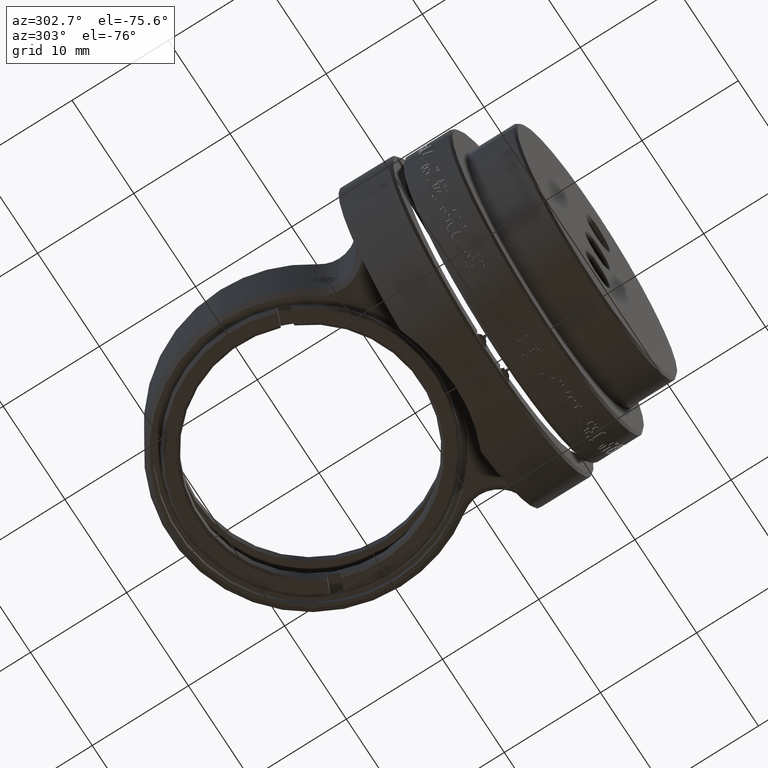
[diagram: clean part render]
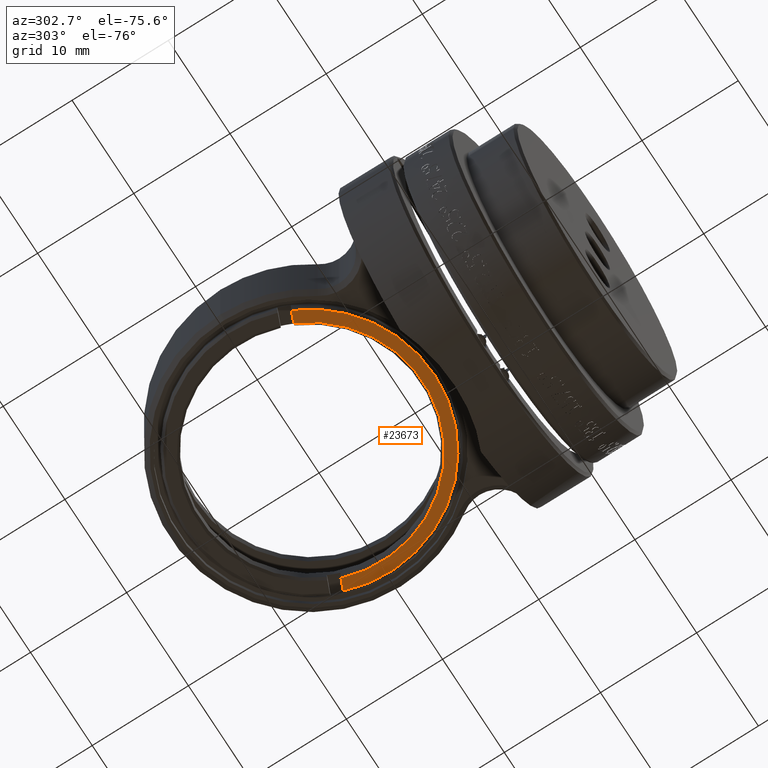
[diagram: same view with one face highlighted and labeled with its STEP entity id]
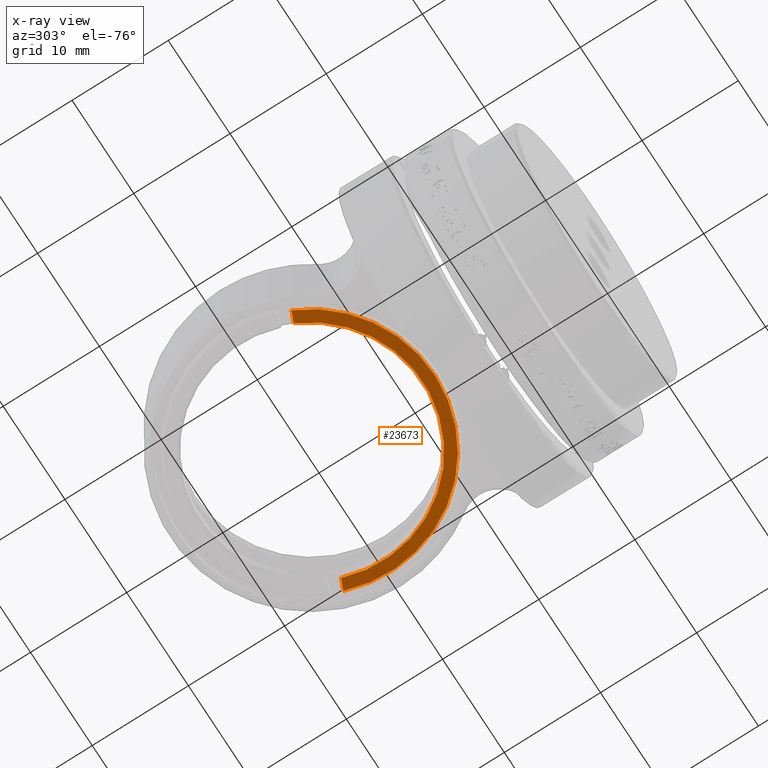
[diagram: x-ray of the same camera — body ghosted, the highlighted face saturated]
A machine part, auxiliary view. The second image highlights one B-rep face of the part: STEP entity #23673.
The next image is the same camera in x-ray: the body ghosted, the highlighted face saturated — about 0% of this face is hidden behind the body in this view.
In plain terms, the highlighted planar face has unit normal (-0, 0, -1).
Its self-contained STEP definition (entity closure, byte-faithful):
#1006 = CARTESIAN_POINT ( 'NONE',  ( 46186.63089675844094, 19162.77612819685237, -8.200000000000148503 ) ) ;
#1107 = DIRECTION ( 'NONE',  ( -0.9237280213470688839, -0.3830490080632362182, 0.000000000000000000 ) ) ;
#2502 = VERTEX_POINT ( 'NONE', #27727 ) ;
#3755 = ORIENTED_EDGE ( 'NONE', *, *, #8726, .T. ) ;
#7135 = VECTOR ( 'NONE', #17172, 1000.000000000000114 ) ;
#8726 = EDGE_CURVE ( 'NONE', #18258, #47354, #26970, .T. ) ;
#9393 = EDGE_LOOP ( 'NONE', ( #42135, #44312, #28620, #3755 ) ) ;
#10265 = DIRECTION ( 'NONE',  ( -0.000000000000000000, 0.000000000000000000, -1.000000000000000000 ) ) ;
#10527 = DIRECTION ( 'NONE',  ( -0.9237280213470687729, -0.3830490080632362182, 0.000000000000000000 ) ) ;
#13894 = CARTESIAN_POINT ( 'NONE',  ( -1.028421834928431841E-13, 10.87996184778807063, -8.200000000000148503 ) ) ;
#14252 = PLANE ( 'NONE',  #49988 ) ;
#14756 = CARTESIAN_POINT ( 'NONE',  ( -11.66827985305681992, 5.391849647700458270, -8.200000000000148503 ) ) ;
#17172 = DIRECTION ( 'NONE',  ( -0.9237280213470687729, -0.3830490080632362182, 0.000000000000000000 ) ) ;
#18258 = VERTEX_POINT ( 'NONE', #19035 ) ;
#18628 = CIRCLE ( 'NONE', #43243, 12.89450000000001495 ) ;
#19035 = CARTESIAN_POINT ( 'NONE',  ( -10.56356788896146881, 5.849948581870741293, -8.200000000000148503 ) ) ;
#19346 = EDGE_CURVE ( 'NONE', #2502, #48084, #18628, .T. ) ;
#21156 = LINE ( 'NONE', #1006, #7135 ) ;
#23370 = DIRECTION ( 'NONE',  ( -0.9237280213470687729, -0.3830490080632362182, 0.000000000000000000 ) ) ;
#23673 = ADVANCED_FACE ( 'NONE', ( #42396 ), #14252, .T. ) ;
#24394 = VECTOR ( 'NONE', #34520, 1000.000000000000114 ) ;
#24567 = EDGE_CURVE ( 'NONE', #18258, #48084, #30260, .T. ) ;
#25842 = DIRECTION ( 'NONE',  ( 0.000000000000000000, 0.000000000000000000, -1.000000000000000000 ) ) ;
#26970 = CIRCLE ( 'NONE', #52421, 11.70000000000002061 ) ;
#27727 = CARTESIAN_POINT ( 'NONE',  ( 12.12793866273250920, 15.25960042225920077, -8.200000000000148503 ) ) ;
#28620 = ORIENTED_EDGE ( 'NONE', *, *, #24567, .F. ) ;
#28998 = CARTESIAN_POINT ( 'NONE',  ( -1.028421834928431841E-13, 10.87996184778807063, -8.200000000000148503 ) ) ;
#30260 = LINE ( 'NONE', #34248, #24394 ) ;
#31442 = EDGE_CURVE ( 'NONE', #2502, #47354, #21156, .T. ) ;
#32002 = CARTESIAN_POINT ( 'NONE',  ( 11.02322669863716165, 14.80150148808891508, -8.200000000000148503 ) ) ;
#34248 = CARTESIAN_POINT ( 'NONE',  ( 46186.63089675844094, 19162.77612819685237, -8.200000000000148503 ) ) ;
#34520 = DIRECTION ( 'NONE',  ( -0.9237280213470687729, -0.3830490080632362182, 0.000000000000000000 ) ) ;
#42135 = ORIENTED_EDGE ( 'NONE', *, *, #31442, .F. ) ;
#42396 = FACE_OUTER_BOUND ( 'NONE', #9393, .T. ) ;
#43243 = AXIS2_PLACEMENT_3D ( 'NONE', #13894, #25842, #23370 ) ;
#44312 = ORIENTED_EDGE ( 'NONE', *, *, #19346, .T. ) ;
#45189 = DIRECTION ( 'NONE',  ( -0.000000000000000000, -0.000000000000000000, 1.000000000000000000 ) ) ;
#46118 = CARTESIAN_POINT ( 'NONE',  ( -1.028421834928431841E-13, 10.87996184778807063, -8.200000000000148503 ) ) ;
#47354 = VERTEX_POINT ( 'NONE', #32002 ) ;
#48084 = VERTEX_POINT ( 'NONE', #14756 ) ;
#49988 = AXIS2_PLACEMENT_3D ( 'NONE', #46118, #10265, #10527 ) ;
#52421 = AXIS2_PLACEMENT_3D ( 'NONE', #28998, #45189, #1107 ) ;